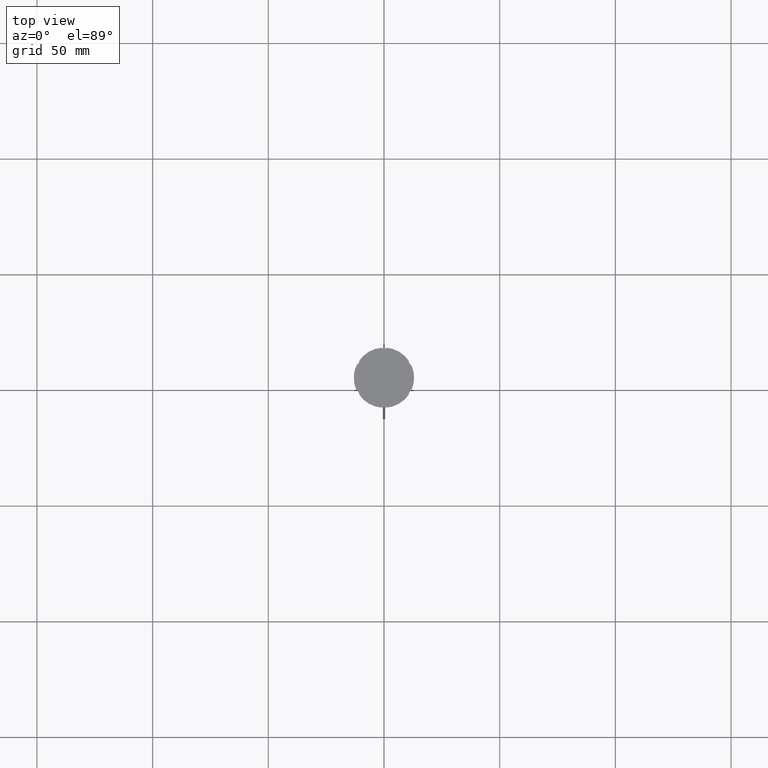
[diagram: clean part render]
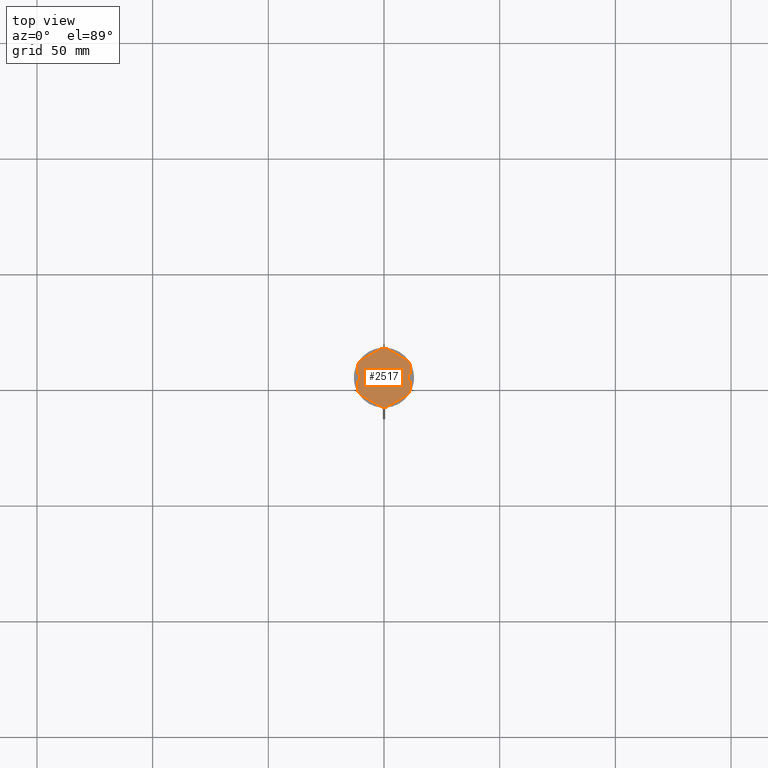
[diagram: same view with one face highlighted and labeled with its STEP entity id]
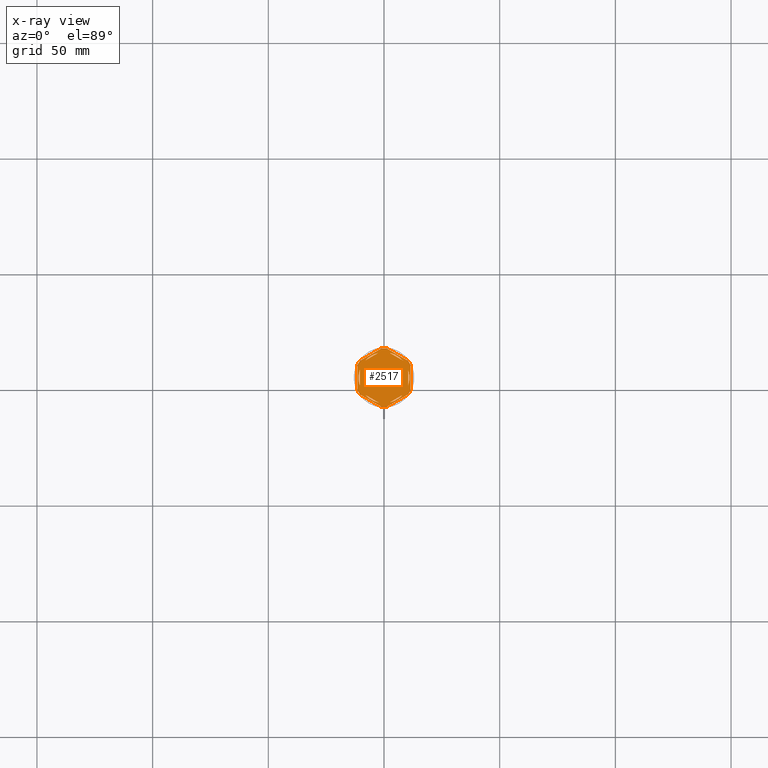
[diagram: x-ray of the same camera — body ghosted, the highlighted face saturated]
A machine part, top view. The second image highlights one B-rep face of the part: STEP entity #2517.
The next image is the same camera in x-ray: the body ghosted, the highlighted face saturated — about 0% of this face is hidden behind the body in this view.
In plain terms, the highlighted planar face has unit normal (0, 0, 1).
Its self-contained STEP definition (entity closure, byte-faithful):
#12 = LINE ( 'NONE', #2867, #57 ) ;
#25 = DIRECTION ( 'NONE',  ( 1.000000000000000000, 0.000000000000000000, 0.000000000000000000 ) ) ;
#33 = CARTESIAN_POINT ( 'NONE',  ( -1.083095244168779780, -12.65373086058253982, -1.000000000000000000 ) ) ;
#37 = CARTESIAN_POINT ( 'NONE',  ( 0.000000000000000000, 0.000000000000000000, -1.000000000000000000 ) ) ;
#43 = CARTESIAN_POINT ( 'NONE',  ( 0.000000000000000000, 0.000000000000000000, -1.000000000000000000 ) ) ;
#47 = EDGE_CURVE ( 'NONE', #266, #1682, #1758, .T. ) ;
#57 = VECTOR ( 'NONE', #1565, 1000.000000000000000 ) ;
#58 = VECTOR ( 'NONE', #2030, 999.9999999999998863 ) ;
#65 = CARTESIAN_POINT ( 'NONE',  ( -8.089454172900133244, -7.453907108661111280, -1.000000000000000888 ) ) ;
#88 = DIRECTION ( 'NONE',  ( -0.000000000000000000, -0.000000000000000000, -1.000000000000000000 ) ) ;
#116 = EDGE_CURVE ( 'NONE', #1159, #1955, #1601, .T. ) ;
#131 = EDGE_CURVE ( 'NONE', #2185, #133, #890, .T. ) ;
#133 = VERTEX_POINT ( 'NONE', #33 ) ;
#140 = DIRECTION ( 'NONE',  ( 1.000000000000000000, 1.243449787580175325E-14, 0.000000000000000000 ) ) ;
#146 = ORIENTED_EDGE ( 'NONE', *, *, #1023, .F. ) ;
#148 = VECTOR ( 'NONE', #1799, 1000.000000000000114 ) ;
#199 = AXIS2_PLACEMENT_3D ( 'NONE', #1935, #1286, #2824 ) ;
#201 = LINE ( 'NONE', #2368, #1828 ) ;
#215 = CARTESIAN_POINT ( 'NONE',  ( 10.41690475583121867, -7.264853426459537467, -1.000000000000000000 ) ) ;
#216 = DIRECTION ( 'NONE',  ( -0.000000000000000000, -0.000000000000000000, -1.000000000000000000 ) ) ;
#220 = EDGE_CURVE ( 'NONE', #600, #1612, #1296, .T. ) ;
#247 = CARTESIAN_POINT ( 'NONE',  ( 0.000000000000000000, 0.000000000000000000, -1.000000000000000000 ) ) ;
#266 = VERTEX_POINT ( 'NONE', #2317 ) ;
#270 = EDGE_LOOP ( 'NONE', ( #774, #1754 ) ) ;
#337 = AXIS2_PLACEMENT_3D ( 'NONE', #666, #858, #2218 ) ;
#353 = VERTEX_POINT ( 'NONE', #1895 ) ;
#358 = ORIENTED_EDGE ( 'NONE', *, *, #2683, .F. ) ;
#389 = CIRCLE ( 'NONE', #1733, 12.69999999999999929 ) ;
#398 = VECTOR ( 'NONE', #1795, 1000.000000000000000 ) ;
#400 = CARTESIAN_POINT ( 'NONE',  ( 0.000000000000000000, 0.000000000000000000, -1.000000000000000000 ) ) ;
#425 = LINE ( 'NONE', #2450, #58 ) ;
#427 = ORIENTED_EDGE ( 'NONE', *, *, #220, .F. ) ;
#433 = ORIENTED_EDGE ( 'NONE', *, *, #116, .T. ) ;
#436 = FACE_BOUND ( 'NONE', #270, .T. ) ;
#445 = CARTESIAN_POINT ( 'NONE',  ( 8.089454172900138573, 7.453907108661105063, -1.000000000000000888 ) ) ;
#480 = DIRECTION ( 'NONE',  ( 1.000000000000000000, 0.000000000000000000, 0.000000000000000000 ) ) ;
#488 = CARTESIAN_POINT ( 'NONE',  ( 2.410545827099865868, -10.73262637081210791, -1.000000000000000888 ) ) ;
#506 = CARTESIAN_POINT ( 'NONE',  ( 0.000000000000000000, 0.000000000000000000, -1.000000000000000000 ) ) ;
#566 = VERTEX_POINT ( 'NONE', #1543 ) ;
#574 = CIRCLE ( 'NONE', #2242, 12.69999999999999929 ) ;
#576 = ORIENTED_EDGE ( 'NONE', *, *, #650, .T. ) ;
#578 = AXIS2_PLACEMENT_3D ( 'NONE', #614, #88, #140 ) ;
#581 = EDGE_LOOP ( 'NONE', ( #427, #1390 ) ) ;
#591 = EDGE_CURVE ( 'NONE', #1281, #133, #574, .T. ) ;
#600 = VERTEX_POINT ( 'NONE', #445 ) ;
#605 = EDGE_CURVE ( 'NONE', #1339, #651, #425, .T. ) ;
#614 = CARTESIAN_POINT ( 'NONE',  ( 0.000000000000000000, 0.000000000000000000, -1.000000000000000000 ) ) ;
#650 = EDGE_CURVE ( 'NONE', #1281, #2485, #2699, .T. ) ;
#651 = VERTEX_POINT ( 'NONE', #488 ) ;
#661 = AXIS2_PLACEMENT_3D ( 'NONE', #1193, #2548, #1605 ) ;
#666 = CARTESIAN_POINT ( 'NONE',  ( 0.000000000000000000, 0.000000000000000000, -1.000000000000000000 ) ) ;
#670 = CARTESIAN_POINT ( 'NONE',  ( 11.50000000000000000, 6.639528095680698350, -1.000000000000000000 ) ) ;
#676 = CARTESIAN_POINT ( 'NONE',  ( -10.49999999999999822, -3.278719262151000624, -1.000000000000000888 ) ) ;
#677 = CARTESIAN_POINT ( 'NONE',  ( 5.612359739892467248E-18, -13.27905619136138959, -1.000000000000000000 ) ) ;
#685 = FACE_BOUND ( 'NONE', #2168, .T. ) ;
#687 = CARTESIAN_POINT ( 'NONE',  ( -11.50000000000000000, -6.639528095680696573, -1.000000000000000000 ) ) ;
#697 = FACE_BOUND ( 'NONE', #1530, .T. ) ;
#701 = DIRECTION ( 'NONE',  ( 1.000000000000000000, 0.000000000000000000, 0.000000000000000000 ) ) ;
#728 = DIRECTION ( 'NONE',  ( 0.000000000000000000, 1.000000000000000000, 0.000000000000000000 ) ) ;
#757 = VECTOR ( 'NONE', #1958, 1000.000000000000000 ) ;
#774 = ORIENTED_EDGE ( 'NONE', *, *, #2123, .F. ) ;
#779 = ORIENTED_EDGE ( 'NONE', *, *, #131, .T. ) ;
#782 = CARTESIAN_POINT ( 'NONE',  ( 0.000000000000000000, 0.000000000000000000, -1.000000000000000000 ) ) ;
#790 = EDGE_CURVE ( 'NONE', #837, #2233, #201, .T. ) ;
#823 = ORIENTED_EDGE ( 'NONE', *, *, #848, .F. ) ;
#826 = ORIENTED_EDGE ( 'NONE', *, *, #2287, .F. ) ;
#837 = VERTEX_POINT ( 'NONE', #1567 ) ;
#848 = EDGE_CURVE ( 'NONE', #566, #1682, #2526, .T. ) ;
#858 = DIRECTION ( 'NONE',  ( 0.000000000000000000, 0.000000000000000000, 1.000000000000000000 ) ) ;
#868 = CARTESIAN_POINT ( 'NONE',  ( 0.000000000000000000, 0.000000000000000000, -1.000000000000000000 ) ) ;
#890 = LINE ( 'NONE', #687, #2748 ) ;
#907 = CIRCLE ( 'NONE', #1594, 11.00000000000000000 ) ;
#908 = FACE_BOUND ( 'NONE', #2075, .T. ) ;
#931 = DIRECTION ( 'NONE',  ( 1.000000000000000000, 0.000000000000000000, 0.000000000000000000 ) ) ;
#934 = CARTESIAN_POINT ( 'NONE',  ( 0.000000000000000000, 13.27905619136138959, -1.000000000000000000 ) ) ;
#946 = DIRECTION ( 'NONE',  ( 1.000000000000000000, 0.000000000000000000, 0.000000000000000000 ) ) ;
#999 = VECTOR ( 'NONE', #728, 1000.000000000000000 ) ;
#1007 = ORIENTED_EDGE ( 'NONE', *, *, #2466, .F. ) ;
#1015 = VERTEX_POINT ( 'NONE', #1859 ) ;
#1023 = EDGE_CURVE ( 'NONE', #2185, #2817, #1127, .T. ) ;
#1067 = ORIENTED_EDGE ( 'NONE', *, *, #47, .T. ) ;
#1088 = ORIENTED_EDGE ( 'NONE', *, *, #1986, .F. ) ;
#1122 = DIRECTION ( 'NONE',  ( -0.000000000000000000, -0.000000000000000000, -1.000000000000000000 ) ) ;
#1127 = CIRCLE ( 'NONE', #1499, 12.69999999999999929 ) ;
#1129 = ORIENTED_EDGE ( 'NONE', *, *, #2321, .F. ) ;
#1138 = DIRECTION ( 'NONE',  ( 0.8660254037844387076, -0.4999999999999997780, 0.000000000000000000 ) ) ;
#1159 = VERTEX_POINT ( 'NONE', #1980 ) ;
#1166 = EDGE_CURVE ( 'NONE', #2309, #1955, #1822, .T. ) ;
#1191 = VERTEX_POINT ( 'NONE', #676 ) ;
#1192 = CARTESIAN_POINT ( 'NONE',  ( -2.410545827099867200, 10.73262637081210613, -1.000000000000000888 ) ) ;
#1193 = CARTESIAN_POINT ( 'NONE',  ( 0.000000000000000000, 0.000000000000000000, -1.000000000000000000 ) ) ;
#1226 = ORIENTED_EDGE ( 'NONE', *, *, #2630, .F. ) ;
#1230 = VERTEX_POINT ( 'NONE', #2433 ) ;
#1243 = EDGE_LOOP ( 'NONE', ( #1226, #358, #1868 ) ) ;
#1252 = ORIENTED_EDGE ( 'NONE', *, *, #1166, .F. ) ;
#1278 = DIRECTION ( 'NONE',  ( 0.000000000000000000, 0.000000000000000000, 1.000000000000000000 ) ) ;
#1281 = VERTEX_POINT ( 'NONE', #2534 ) ;
#1286 = DIRECTION ( 'NONE',  ( 0.000000000000000000, 0.000000000000000000, 1.000000000000000000 ) ) ;
#1296 = CIRCLE ( 'NONE', #661, 11.00000000000000000 ) ;
#1316 = PLANE ( 'NONE',  #2574 ) ;
#1331 = DIRECTION ( 'NONE',  ( -0.8660254037844385966, -0.5000000000000001110, 0.000000000000000000 ) ) ;
#1339 = VERTEX_POINT ( 'NONE', #1838 ) ;
#1367 = LINE ( 'NONE', #2495, #2152 ) ;
#1376 = DIRECTION ( 'NONE',  ( 0.000000000000000000, 0.000000000000000000, 1.000000000000000000 ) ) ;
#1386 = ORIENTED_EDGE ( 'NONE', *, *, #1661, .T. ) ;
#1390 = ORIENTED_EDGE ( 'NONE', *, *, #1773, .F. ) ;
#1492 = VERTEX_POINT ( 'NONE', #1891 ) ;
#1499 = AXIS2_PLACEMENT_3D ( 'NONE', #1667, #2326, #2303 ) ;
#1530 = EDGE_LOOP ( 'NONE', ( #2186, #1896 ) ) ;
#1533 = FACE_BOUND ( 'NONE', #581, .T. ) ;
#1543 = CARTESIAN_POINT ( 'NONE',  ( 10.41690475583121156, 7.264853426459550789, -1.000000000000000000 ) ) ;
#1565 = DIRECTION ( 'NONE',  ( 0.000000000000000000, -1.000000000000000000, 0.000000000000000000 ) ) ;
#1567 = CARTESIAN_POINT ( 'NONE',  ( -2.410545827099876082, -10.73262637081210435, -1.000000000000000888 ) ) ;
#1569 = CARTESIAN_POINT ( 'NONE',  ( 0.000000000000000000, 0.000000000000000000, -1.000000000000000000 ) ) ;
#1577 = ORIENTED_EDGE ( 'NONE', *, *, #2487, .F. ) ;
#1578 = DIRECTION ( 'NONE',  ( 0.8660254037844387076, -0.4999999999999999445, 0.000000000000000000 ) ) ;
#1592 = EDGE_CURVE ( 'NONE', #2309, #2817, #12, .T. ) ;
#1594 = AXIS2_PLACEMENT_3D ( 'NONE', #37, #1811, #701 ) ;
#1601 = LINE ( 'NONE', #934, #2048 ) ;
#1605 = DIRECTION ( 'NONE',  ( 1.000000000000000000, 0.000000000000000000, 0.000000000000000000 ) ) ;
#1608 = CARTESIAN_POINT ( 'NONE',  ( 0.000000000000000000, 0.000000000000000000, -1.000000000000000000 ) ) ;
#1612 = VERTEX_POINT ( 'NONE', #1724 ) ;
#1638 = CARTESIAN_POINT ( 'NONE',  ( 10.49999999999999467, 6.062177826491072175, -1.000000000000000888 ) ) ;
#1646 = CARTESIAN_POINT ( 'NONE',  ( -11.50000000000000000, 5.388877434122992582, -1.000000000000000000 ) ) ;
#1649 = VERTEX_POINT ( 'NONE', #2222 ) ;
#1661 = EDGE_CURVE ( 'NONE', #566, #1230, #1755, .T. ) ;
#1667 = CARTESIAN_POINT ( 'NONE',  ( 0.000000000000000000, 0.000000000000000000, -1.000000000000000000 ) ) ;
#1682 = VERTEX_POINT ( 'NONE', #2264 ) ;
#1698 = EDGE_CURVE ( 'NONE', #1649, #1191, #2564, .T. ) ;
#1724 = CARTESIAN_POINT ( 'NONE',  ( 2.410545827099861871, 10.73262637081210791, -1.000000000000000888 ) ) ;
#1730 = AXIS2_PLACEMENT_3D ( 'NONE', #506, #216, #2459 ) ;
#1733 = AXIS2_PLACEMENT_3D ( 'NONE', #247, #2209, #480 ) ;
#1754 = ORIENTED_EDGE ( 'NONE', *, *, #2177, .F. ) ;
#1755 = LINE ( 'NONE', #670, #757 ) ;
#1758 = LINE ( 'NONE', #1995, #398 ) ;
#1772 = DIRECTION ( 'NONE',  ( -1.430775808321104180E-16, -1.000000000000000000, 0.000000000000000000 ) ) ;
#1773 = EDGE_CURVE ( 'NONE', #1612, #600, #1816, .T. ) ;
#1795 = DIRECTION ( 'NONE',  ( 1.306360520641008153E-16, 1.000000000000000000, 0.000000000000000000 ) ) ;
#1799 = DIRECTION ( 'NONE',  ( 0.8660254037844385966, 0.4999999999999999445, 0.000000000000000000 ) ) ;
#1811 = DIRECTION ( 'NONE',  ( 0.000000000000000000, 0.000000000000000000, 1.000000000000000000 ) ) ;
#1816 = LINE ( 'NONE', #1638, #2618 ) ;
#1817 = DIRECTION ( 'NONE',  ( 1.000000000000000000, 0.000000000000000000, -0.000000000000000000 ) ) ;
#1822 = CIRCLE ( 'NONE', #2470, 12.69999999999999929 ) ;
#1828 = VECTOR ( 'NONE', #2649, 1000.000000000000000 ) ;
#1833 = LINE ( 'NONE', #2277, #999 ) ;
#1837 = AXIS2_PLACEMENT_3D ( 'NONE', #400, #1278, #2016 ) ;
#1838 = CARTESIAN_POINT ( 'NONE',  ( 8.089454172900135021, -7.453907108661109504, -1.000000000000000888 ) ) ;
#1859 = CARTESIAN_POINT ( 'NONE',  ( -10.49999999999999822, 3.278719262151000624, -1.000000000000000888 ) ) ;
#1868 = ORIENTED_EDGE ( 'NONE', *, *, #1698, .F. ) ;
#1891 = CARTESIAN_POINT ( 'NONE',  ( -8.089454172900135021, 7.453907108661106840, -1.000000000000000888 ) ) ;
#1895 = CARTESIAN_POINT ( 'NONE',  ( 10.49999999999999467, 3.278719262151012170, -1.000000000000000888 ) ) ;
#1896 = ORIENTED_EDGE ( 'NONE', *, *, #605, .F. ) ;
#1935 = CARTESIAN_POINT ( 'NONE',  ( 0.000000000000000000, 0.000000000000000000, -1.000000000000000000 ) ) ;
#1955 = VERTEX_POINT ( 'NONE', #2378 ) ;
#1958 = DIRECTION ( 'NONE',  ( -0.8660254037844388186, 0.4999999999999997224, 0.000000000000000000 ) ) ;
#1962 = DIRECTION ( 'NONE',  ( -0.000000000000000000, -0.000000000000000000, -1.000000000000000000 ) ) ;
#1963 = CIRCLE ( 'NONE', #337, 11.00000000000000000 ) ;
#1980 = CARTESIAN_POINT ( 'NONE',  ( -1.083095244168783333, 12.65373086058254160, -1.000000000000000000 ) ) ;
#1986 = EDGE_CURVE ( 'NONE', #2327, #353, #1963, .T. ) ;
#1995 = CARTESIAN_POINT ( 'NONE',  ( 11.49999999999999822, -6.639528095680694797, -1.000000000000000000 ) ) ;
#2016 = DIRECTION ( 'NONE',  ( 1.000000000000000000, 0.000000000000000000, 0.000000000000000000 ) ) ;
#2027 = DIRECTION ( 'NONE',  ( 1.000000000000000000, 0.000000000000000000, 0.000000000000000000 ) ) ;
#2030 = DIRECTION ( 'NONE',  ( -0.8660254037844387076, -0.4999999999999999445, 0.000000000000000000 ) ) ;
#2035 = CARTESIAN_POINT ( 'NONE',  ( 10.49999999999999289, -6.062177826491073063, -1.000000000000000888 ) ) ;
#2048 = VECTOR ( 'NONE', #1331, 1000.000000000000114 ) ;
#2075 = EDGE_LOOP ( 'NONE', ( #826, #2503 ) ) ;
#2113 = ORIENTED_EDGE ( 'NONE', *, *, #1592, .T. ) ;
#2123 = EDGE_CURVE ( 'NONE', #2261, #1492, #2719, .T. ) ;
#2142 = AXIS2_PLACEMENT_3D ( 'NONE', #1608, #2297, #931 ) ;
#2152 = VECTOR ( 'NONE', #2259, 1000.000000000000000 ) ;
#2168 = EDGE_LOOP ( 'NONE', ( #1088, #1007 ) ) ;
#2175 = CARTESIAN_POINT ( 'NONE',  ( 10.49999999999999467, -3.278719262151014835, -1.000000000000000888 ) ) ;
#2177 = EDGE_CURVE ( 'NONE', #1492, #2261, #1367, .T. ) ;
#2185 = VERTEX_POINT ( 'NONE', #2462 ) ;
#2186 = ORIENTED_EDGE ( 'NONE', *, *, #2307, .F. ) ;
#2201 = AXIS2_PLACEMENT_3D ( 'NONE', #782, #1376, #946 ) ;
#2206 = EDGE_LOOP ( 'NONE', ( #1067, #823, #1386, #1129, #433, #1252, #2113, #146, #779, #2364, #576, #1577 ) ) ;
#2209 = DIRECTION ( 'NONE',  ( -0.000000000000000000, -0.000000000000000000, -1.000000000000000000 ) ) ;
#2218 = DIRECTION ( 'NONE',  ( 1.000000000000000000, 0.000000000000000000, 0.000000000000000000 ) ) ;
#2222 = CARTESIAN_POINT ( 'NONE',  ( -11.00000000000000000, 0.000000000000000000, -1.000000000000000000 ) ) ;
#2233 = VERTEX_POINT ( 'NONE', #65 ) ;
#2242 = AXIS2_PLACEMENT_3D ( 'NONE', #868, #1122, #25 ) ;
#2254 = FACE_OUTER_BOUND ( 'NONE', #2206, .T. ) ;
#2259 = DIRECTION ( 'NONE',  ( 0.8660254037844385966, 0.5000000000000001110, -0.000000000000000000 ) ) ;
#2261 = VERTEX_POINT ( 'NONE', #1192 ) ;
#2264 = CARTESIAN_POINT ( 'NONE',  ( 11.49999999999999822, 5.388877434122992582, -1.000000000000000000 ) ) ;
#2277 = CARTESIAN_POINT ( 'NONE',  ( -10.49999999999999822, 6.062177826491068622, -1.000000000000000888 ) ) ;
#2287 = EDGE_CURVE ( 'NONE', #2233, #837, #907, .T. ) ;
#2297 = DIRECTION ( 'NONE',  ( 0.000000000000000000, 0.000000000000000000, 1.000000000000000000 ) ) ;
#2303 = DIRECTION ( 'NONE',  ( 1.000000000000000000, 7.105427357601001859E-15, 0.000000000000000000 ) ) ;
#2307 = EDGE_CURVE ( 'NONE', #651, #1339, #2669, .T. ) ;
#2309 = VERTEX_POINT ( 'NONE', #1646 ) ;
#2317 = CARTESIAN_POINT ( 'NONE',  ( 11.49999999999999822, -5.388877434122996135, -1.000000000000000000 ) ) ;
#2321 = EDGE_CURVE ( 'NONE', #1159, #1230, #2339, .T. ) ;
#2326 = DIRECTION ( 'NONE',  ( -0.000000000000000000, -0.000000000000000000, -1.000000000000000000 ) ) ;
#2327 = VERTEX_POINT ( 'NONE', #2175 ) ;
#2339 = CIRCLE ( 'NONE', #578, 12.69999999999999929 ) ;
#2364 = ORIENTED_EDGE ( 'NONE', *, *, #591, .F. ) ;
#2368 = CARTESIAN_POINT ( 'NONE',  ( -10.49999999999999822, -6.062177826491068622, -1.000000000000000888 ) ) ;
#2378 = CARTESIAN_POINT ( 'NONE',  ( -10.41690475583121689, 7.264853426459546348, -1.000000000000000000 ) ) ;
#2397 = CARTESIAN_POINT ( 'NONE',  ( -11.50000000000000000, -5.388877434122992582, -1.000000000000000000 ) ) ;
#2427 = FACE_BOUND ( 'NONE', #1243, .T. ) ;
#2433 = CARTESIAN_POINT ( 'NONE',  ( 1.083095244168781557, 12.65373086058254160, -1.000000000000000000 ) ) ;
#2450 = CARTESIAN_POINT ( 'NONE',  ( -2.602085213965210642E-15, -12.12435565298214080, -1.000000000000000888 ) ) ;
#2459 = DIRECTION ( 'NONE',  ( 1.000000000000000000, -1.776356839400250465E-14, 0.000000000000000000 ) ) ;
#2462 = CARTESIAN_POINT ( 'NONE',  ( -10.41690475583121334, -7.264853426459548125, -1.000000000000000000 ) ) ;
#2466 = EDGE_CURVE ( 'NONE', #353, #2327, #2692, .T. ) ;
#2470 = AXIS2_PLACEMENT_3D ( 'NONE', #1569, #1962, #2027 ) ;
#2485 = VERTEX_POINT ( 'NONE', #215 ) ;
#2487 = EDGE_CURVE ( 'NONE', #266, #2485, #389, .T. ) ;
#2495 = CARTESIAN_POINT ( 'NONE',  ( -1.734723475976807094E-15, 12.12435565298214080, -1.000000000000000888 ) ) ;
#2503 = ORIENTED_EDGE ( 'NONE', *, *, #790, .F. ) ;
#2517 = ADVANCED_FACE ( 'NONE', ( #1533, #685, #697, #908, #2427, #436, #2254 ), #1316, .T. ) ;
#2526 = CIRCLE ( 'NONE', #1730, 12.69999999999999929 ) ;
#2534 = CARTESIAN_POINT ( 'NONE',  ( 1.083095244168774673, -12.65373086058253982, -1.000000000000000000 ) ) ;
#2548 = DIRECTION ( 'NONE',  ( 0.000000000000000000, 0.000000000000000000, 1.000000000000000000 ) ) ;
#2564 = CIRCLE ( 'NONE', #2142, 11.00000000000000000 ) ;
#2574 = AXIS2_PLACEMENT_3D ( 'NONE', #43, #2882, #1817 ) ;
#2618 = VECTOR ( 'NONE', #1578, 999.9999999999998863 ) ;
#2630 = EDGE_CURVE ( 'NONE', #1015, #1649, #2761, .T. ) ;
#2649 = DIRECTION ( 'NONE',  ( -0.8660254037844384856, 0.5000000000000002220, 0.000000000000000000 ) ) ;
#2669 = CIRCLE ( 'NONE', #199, 11.00000000000000000 ) ;
#2683 = EDGE_CURVE ( 'NONE', #1191, #1015, #1833, .T. ) ;
#2692 = LINE ( 'NONE', #2035, #2853 ) ;
#2699 = LINE ( 'NONE', #677, #148 ) ;
#2719 = CIRCLE ( 'NONE', #1837, 11.00000000000000000 ) ;
#2748 = VECTOR ( 'NONE', #1138, 1000.000000000000227 ) ;
#2761 = CIRCLE ( 'NONE', #2201, 11.00000000000000000 ) ;
#2817 = VERTEX_POINT ( 'NONE', #2397 ) ;
#2824 = DIRECTION ( 'NONE',  ( 1.000000000000000000, 0.000000000000000000, 0.000000000000000000 ) ) ;
#2853 = VECTOR ( 'NONE', #1772, 1000.000000000000000 ) ;
#2867 = CARTESIAN_POINT ( 'NONE',  ( -11.50000000000000000, 6.639528095680691244, -1.000000000000000000 ) ) ;
#2882 = DIRECTION ( 'NONE',  ( 0.000000000000000000, 0.000000000000000000, 1.000000000000000000 ) ) ;